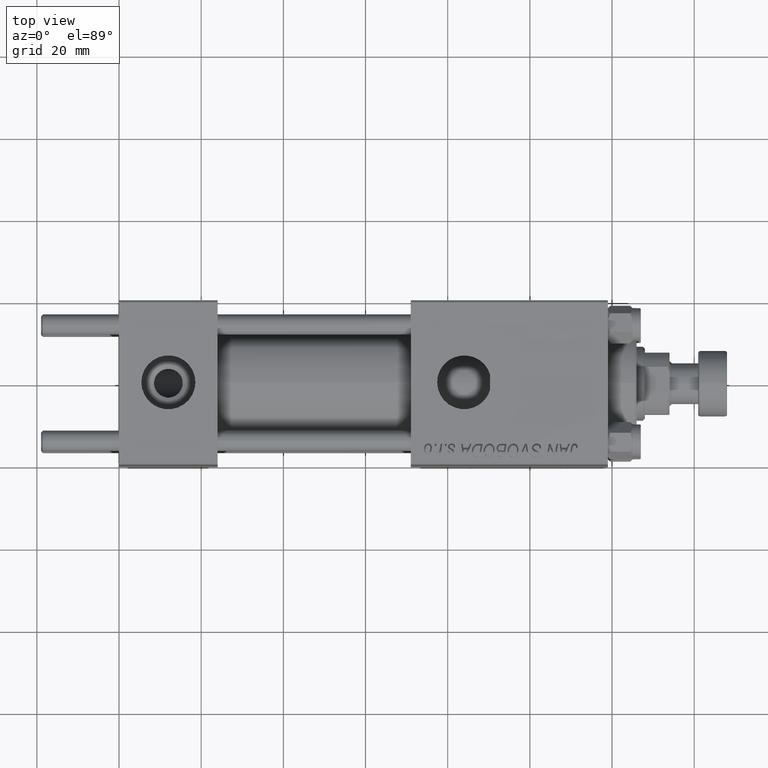
[diagram: clean part render]
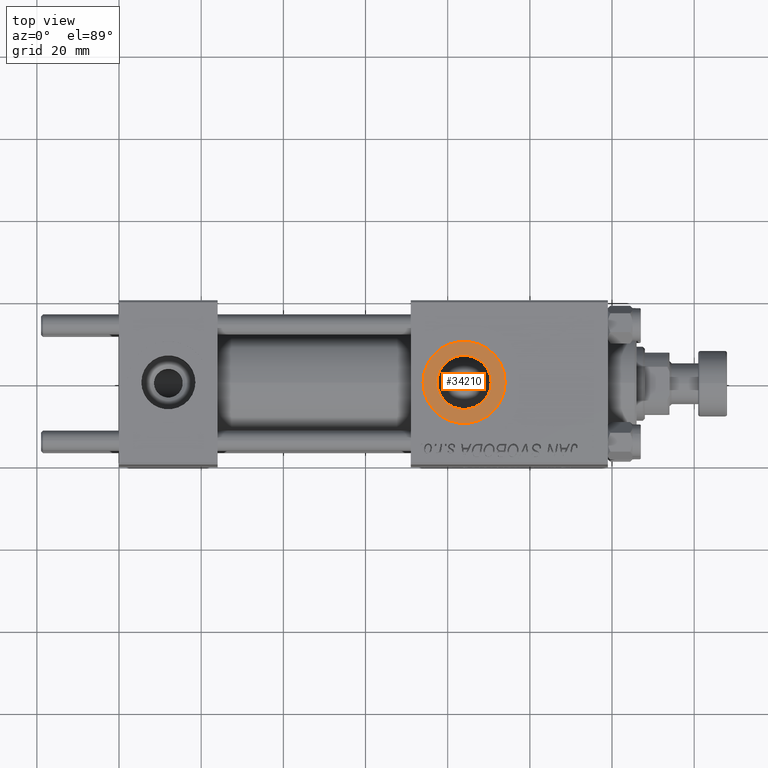
[diagram: same view with one face highlighted and labeled with its STEP entity id]
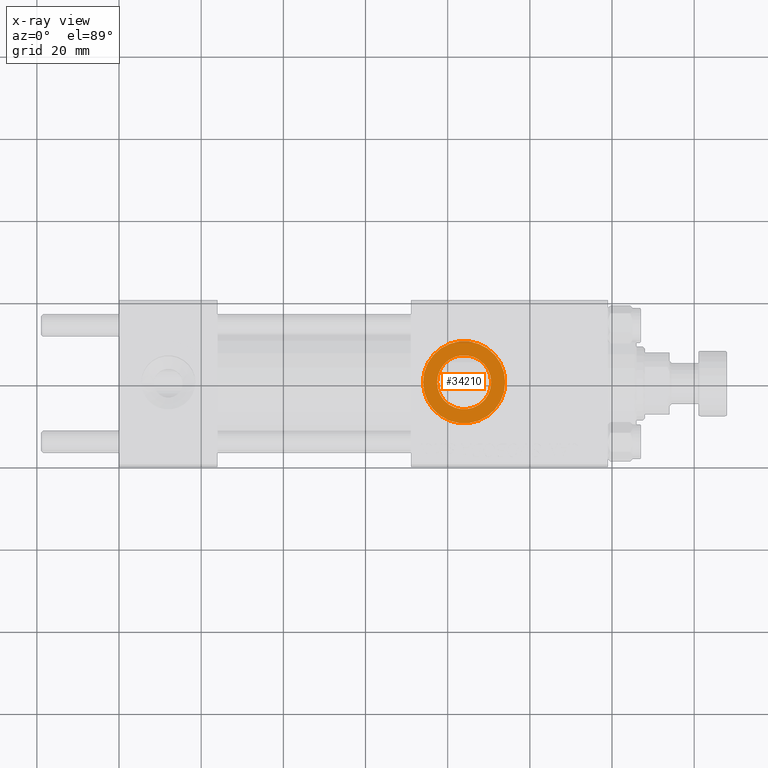
[diagram: x-ray of the same camera — body ghosted, the highlighted face saturated]
A machine part, top view. The second image highlights one B-rep face of the part: STEP entity #34210.
The next image is the same camera in x-ray: the body ghosted, the highlighted face saturated — about 0% of this face is hidden behind the body in this view.
In plain terms, the highlighted planar face has unit normal (0, 0, 1).
Its self-contained STEP definition (entity closure, byte-faithful):
#2086 = CARTESIAN_POINT ( 'NONE',  ( 84.00000000000000000, -1.734723475976806897E-15, 19.80000000000000071 ) ) ;
#2353 = CIRCLE ( 'NONE', #32551, 6.580000000001542837 ) ;
#2442 = CARTESIAN_POINT ( 'NONE',  ( 84.00000000000000000, -1.734723475976806897E-15, 19.80000000000000071 ) ) ;
#2614 = PLANE ( 'NONE',  #33330 ) ;
#2918 = AXIS2_PLACEMENT_3D ( 'NONE', #28268, #16944, #36934 ) ;
#3964 = VERTEX_POINT ( 'NONE', #20666 ) ;
#3977 = ORIENTED_EDGE ( 'NONE', *, *, #28547, .T. ) ;
#7322 = CARTESIAN_POINT ( 'NONE',  ( 84.00000000000000000, -1.734723475976806897E-15, 19.80000000000000071 ) ) ;
#8759 = CARTESIAN_POINT ( 'NONE',  ( 84.00000000000000000, -1.734723475976806897E-15, 19.80000000000000071 ) ) ;
#8816 = AXIS2_PLACEMENT_3D ( 'NONE', #7322, #19414, #14948 ) ;
#9132 = EDGE_CURVE ( 'NONE', #51524, #15747, #31504, .T. ) ;
#10623 = ORIENTED_EDGE ( 'NONE', *, *, #15652, .T. ) ;
#14948 = DIRECTION ( 'NONE',  ( 1.000000000000000000, 0.000000000000000000, 0.000000000000000000 ) ) ;
#15652 = EDGE_CURVE ( 'NONE', #42474, #3964, #2353, .T. ) ;
#15747 = VERTEX_POINT ( 'NONE', #45331 ) ;
#16794 = CIRCLE ( 'NONE', #41126, 10.00000000000154898 ) ;
#16944 = DIRECTION ( 'NONE',  ( -0.000000000000000000, -0.000000000000000000, -1.000000000000000000 ) ) ;
#18208 = DIRECTION ( 'NONE',  ( 0.000000000000000000, 0.000000000000000000, 1.000000000000000000 ) ) ;
#19414 = DIRECTION ( 'NONE',  ( 0.000000000000000000, 0.000000000000000000, 1.000000000000000000 ) ) ;
#19600 = FACE_OUTER_BOUND ( 'NONE', #26638, .T. ) ;
#20666 = CARTESIAN_POINT ( 'NONE',  ( 90.58000000000154728, -9.289058821376599092E-16, 19.80000000000000071 ) ) ;
#23807 = FACE_BOUND ( 'NONE', #51686, .T. ) ;
#23918 = CARTESIAN_POINT ( 'NONE',  ( 94.00000000000154898, -1.734723475976806897E-15, 19.80000000000000071 ) ) ;
#24580 = ORIENTED_EDGE ( 'NONE', *, *, #9132, .T. ) ;
#26638 = EDGE_LOOP ( 'NONE', ( #24580, #36101 ) ) ;
#28268 = CARTESIAN_POINT ( 'NONE',  ( 84.00000000000000000, -1.734723475976806897E-15, 19.80000000000000071 ) ) ;
#28547 = EDGE_CURVE ( 'NONE', #3964, #42474, #38288, .T. ) ;
#31504 = CIRCLE ( 'NONE', #8816, 10.00000000000154898 ) ;
#32551 = AXIS2_PLACEMENT_3D ( 'NONE', #8759, #32704, #51932 ) ;
#32704 = DIRECTION ( 'NONE',  ( -0.000000000000000000, -0.000000000000000000, -1.000000000000000000 ) ) ;
#33330 = AXIS2_PLACEMENT_3D ( 'NONE', #2086, #43791, #34668 ) ;
#33484 = DIRECTION ( 'NONE',  ( 1.000000000000000000, 0.000000000000000000, 0.000000000000000000 ) ) ;
#34210 = ADVANCED_FACE ( 'NONE', ( #23807, #19600 ), #2614, .T. ) ;
#34668 = DIRECTION ( 'NONE',  ( 1.000000000000000000, 0.000000000000000000, -0.000000000000000000 ) ) ;
#35120 = CARTESIAN_POINT ( 'NONE',  ( 77.41999999999846693, -1.734723475976806897E-15, 19.80000000000000071 ) ) ;
#36101 = ORIENTED_EDGE ( 'NONE', *, *, #44608, .T. ) ;
#36934 = DIRECTION ( 'NONE',  ( 1.000000000000000000, 0.000000000000000000, 0.000000000000000000 ) ) ;
#38288 = CIRCLE ( 'NONE', #2918, 6.580000000001542837 ) ;
#41126 = AXIS2_PLACEMENT_3D ( 'NONE', #2442, #18208, #33484 ) ;
#42474 = VERTEX_POINT ( 'NONE', #35120 ) ;
#43791 = DIRECTION ( 'NONE',  ( 0.000000000000000000, 0.000000000000000000, 1.000000000000000000 ) ) ;
#44608 = EDGE_CURVE ( 'NONE', #15747, #51524, #16794, .T. ) ;
#45331 = CARTESIAN_POINT ( 'NONE',  ( 73.99999999999845102, -5.100766768292640183E-16, 19.80000000000000071 ) ) ;
#51524 = VERTEX_POINT ( 'NONE', #23918 ) ;
#51686 = EDGE_LOOP ( 'NONE', ( #10623, #3977 ) ) ;
#51932 = DIRECTION ( 'NONE',  ( 1.000000000000000000, 0.000000000000000000, 0.000000000000000000 ) ) ;